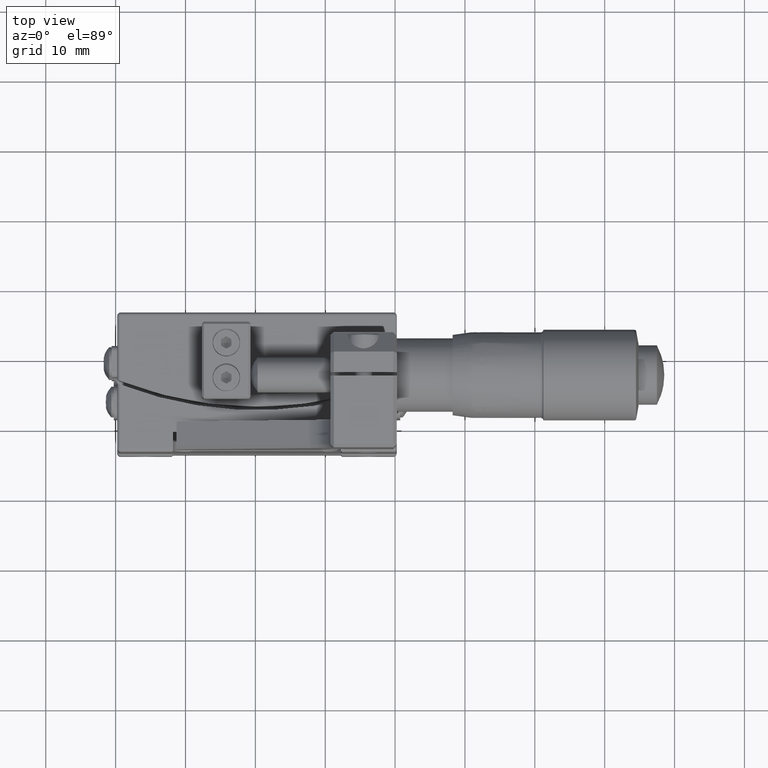
[diagram: clean part render]
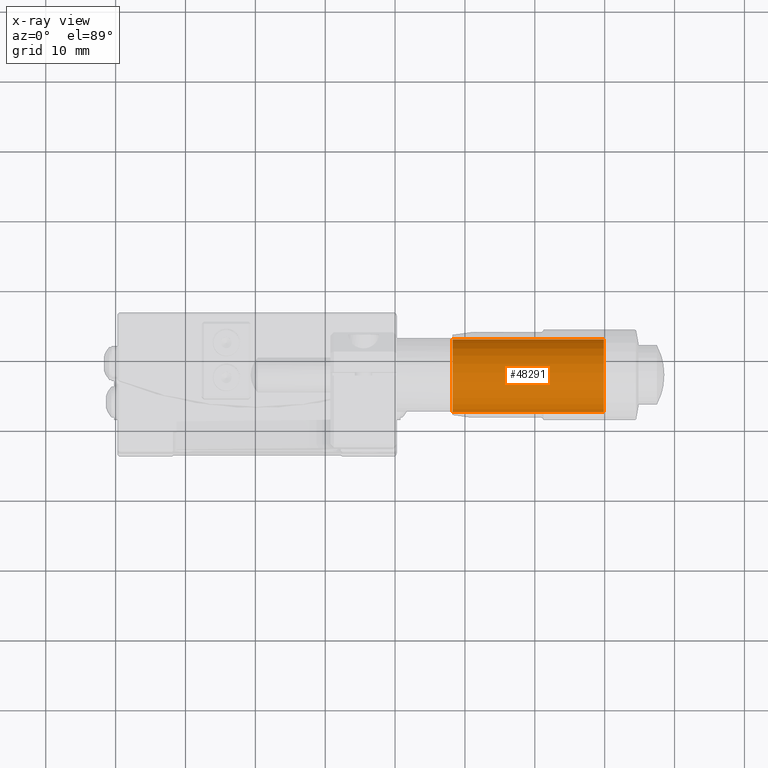
[diagram: x-ray — body ghosted, one internal face saturated and labeled with its STEP entity id]
A machine part, top view, then the same camera in x-ray: the body is ghosted and one INTERNAL B-rep face — a face not visible from any outside direction — is saturated and labeled: STEP entity #48291.
In plain terms, the highlighted cylindrical surface (partial cylindrical patch) has radius 5.35 mm, axis along (-1, -0, 0).
Its self-contained STEP definition (entity closure, byte-faithful):
#278 = VERTEX_POINT ( 'NONE', #4201 ) ;
#4201 = CARTESIAN_POINT ( 'NONE',  ( 49.88052097740880697, 2.184902016397599844, 28.85494684207669991 ) ) ;
#4470 = EDGE_CURVE ( 'NONE', #24825, #26355, #35928, .T. ) ;
#4591 = FACE_OUTER_BOUND ( 'NONE', #13713, .T. ) ;
#5838 = AXIS2_PLACEMENT_3D ( 'NONE', #32942, #12467, #11948 ) ;
#7484 = DIRECTION ( 'NONE',  ( 1.296989514748995196E-15, 0.9510565162951498674, 0.3090169943749587755 ) ) ;
#11015 = ORIENTED_EDGE ( 'NONE', *, *, #4470, .T. ) ;
#11407 = VECTOR ( 'NONE', #42573, 1000.000000000000000 ) ;
#11948 = DIRECTION ( 'NONE',  ( 1.945484272123493089E-15, 0.9510565162951500895, 0.3090169943749582204 ) ) ;
#12210 = EDGE_CURVE ( 'NONE', #278, #26355, #22163, .T. ) ;
#12467 = DIRECTION ( 'NONE',  ( -1.000000000000000000, 5.569052039890349487E-17, 6.124321555939680663E-15 ) ) ;
#13713 = EDGE_LOOP ( 'NONE', ( #36305, #47651, #11015, #20152 ) ) ;
#20152 = ORIENTED_EDGE ( 'NONE', *, *, #12210, .F. ) ;
#20258 = CYLINDRICAL_SURFACE ( 'NONE', #29595, 5.350000000000080469 ) ;
#21020 = DIRECTION ( 'NONE',  ( 1.296989514748995196E-15, 0.9510565162951498674, 0.3090169943749587755 ) ) ;
#22163 = LINE ( 'NONE', #25675, #11407 ) ;
#23639 = DIRECTION ( 'NONE',  ( -1.000000000000000000, -5.610646443853550237E-16, 5.923925655147901159E-15 ) ) ;
#24825 = VERTEX_POINT ( 'NONE', #29271 ) ;
#25675 = CARTESIAN_POINT ( 'NONE',  ( 49.88052097740880697, 2.184902016397599844, 28.85494684207669991 ) ) ;
#26355 = VERTEX_POINT ( 'NONE', #28502 ) ;
#28502 = CARTESIAN_POINT ( 'NONE',  ( 28.23052097740880129, 2.184902016397629598, 28.85494684207679938 ) ) ;
#29271 = CARTESIAN_POINT ( 'NONE',  ( 28.23052097740874800, -7.991402707960540752, 25.54846500226469885 ) ) ;
#29595 = AXIS2_PLACEMENT_3D ( 'NONE', #49025, #37443, #21020 ) ;
#31522 = AXIS2_PLACEMENT_3D ( 'NONE', #36026, #23639, #7484 ) ;
#32942 = CARTESIAN_POINT ( 'NONE',  ( 28.23052097740874800, -2.903250345781494879, 27.20170592217075267 ) ) ;
#35928 = CIRCLE ( 'NONE', #5838, 5.350000000000079581 ) ;
#36026 = CARTESIAN_POINT ( 'NONE',  ( 49.88052097740880697, -2.903250345781525077, 27.20170592217065320 ) ) ;
#36305 = ORIENTED_EDGE ( 'NONE', *, *, #37413, .F. ) ;
#37211 = LINE ( 'NONE', #49826, #43434 ) ;
#37413 = EDGE_CURVE ( 'NONE', #46183, #278, #47817, .T. ) ;
#37443 = DIRECTION ( 'NONE',  ( -1.000000000000000000, -5.610646443853579819E-16, 5.923925655147901159E-15 ) ) ;
#42573 = DIRECTION ( 'NONE',  ( -1.000000000000000000, 7.074191191907689438E-30, 6.106226608968630280E-15 ) ) ;
#43434 = VECTOR ( 'NONE', #48124, 1000.000000000000000 ) ;
#44890 = CARTESIAN_POINT ( 'NONE',  ( 49.88052097740880697, -7.991402707960599372, 25.54846500226469885 ) ) ;
#46183 = VERTEX_POINT ( 'NONE', #44890 ) ;
#47651 = ORIENTED_EDGE ( 'NONE', *, *, #49940, .T. ) ;
#47817 = CIRCLE ( 'NONE', #31522, 5.350000000000080469 ) ;
#48124 = DIRECTION ( 'NONE',  ( -1.000000000000000000, 7.074191191907689438E-30, 6.106226608968630280E-15 ) ) ;
#48291 = ADVANCED_FACE ( 'NONE', ( #4591 ), #20258, .F. ) ;
#49025 = CARTESIAN_POINT ( 'NONE',  ( 49.88052097740880697, -2.903250345781525077, 27.20170592217065320 ) ) ;
#49826 = CARTESIAN_POINT ( 'NONE',  ( 49.88052097740880697, -7.991402707960649998, 25.54846500226459938 ) ) ;
#49940 = EDGE_CURVE ( 'NONE', #46183, #24825, #37211, .T. ) ;